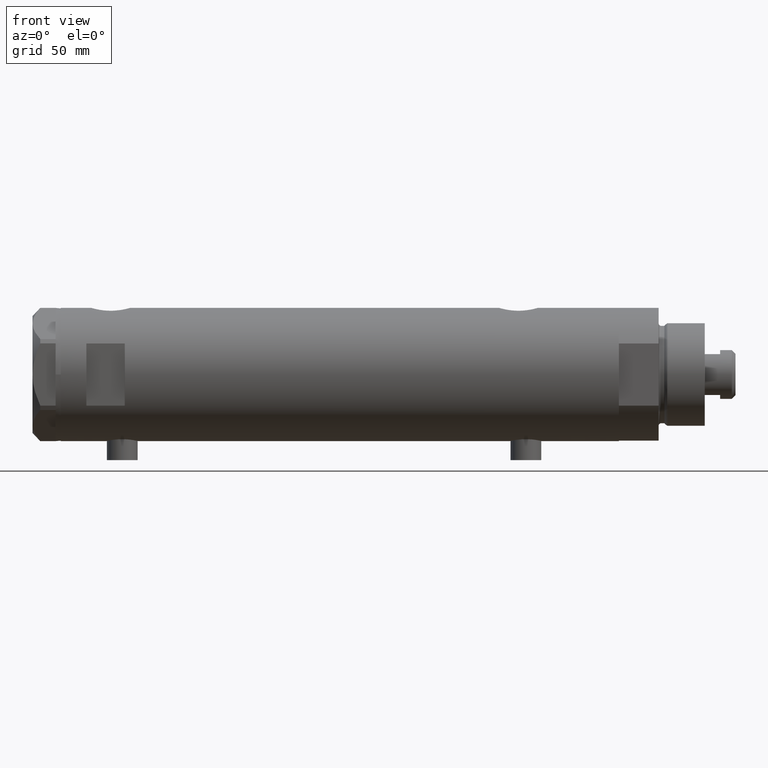
[diagram: clean part render]
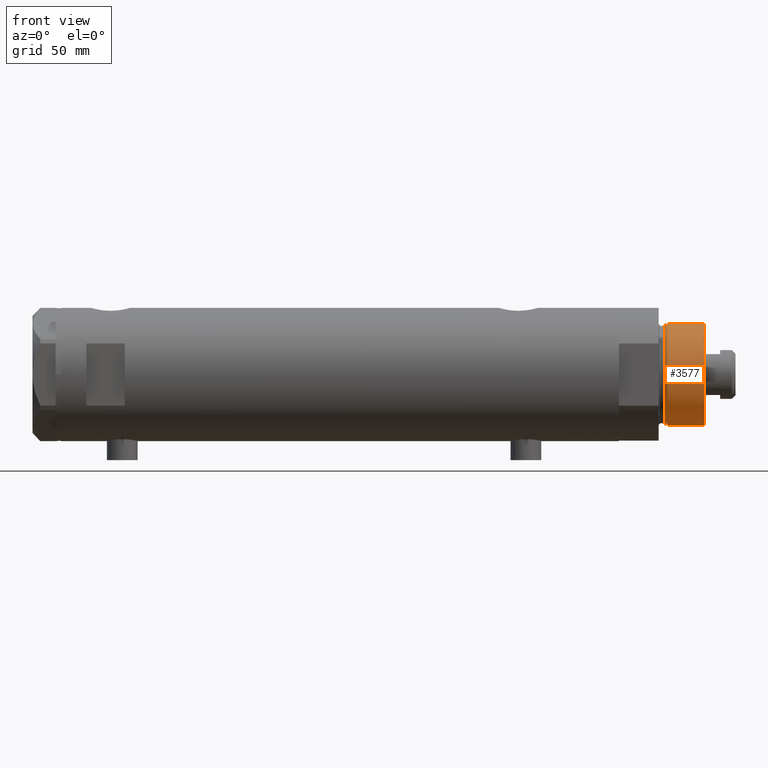
[diagram: same view with one face highlighted and labeled with its STEP entity id]
A machine part, front view. The second image highlights one B-rep face of the part: STEP entity #3577.
In plain terms, the highlighted cylindrical surface (partial cylindrical patch) has radius 20 mm, axis along (-1, -0, 0).
Its self-contained STEP definition (entity closure, byte-faithful):
#231 = CARTESIAN_POINT ( 'NONE',  ( -19.99999999999999645, 0.000000000000000000, 18.87384048104053846 ) ) ;
#772 = CARTESIAN_POINT ( 'NONE',  ( 19.99999999999999645, 2.449293598294706119E-15, 33.50000000000000000 ) ) ;
#864 = DIRECTION ( 'NONE',  ( -1.000000000000000000, 0.000000000000000000, 0.000000000000000000 ) ) ;
#1019 = VERTEX_POINT ( 'NONE', #4766 ) ;
#1091 = VECTOR ( 'NONE', #4449, 1000.000000000000000 ) ;
#1184 = ORIENTED_EDGE ( 'NONE', *, *, #1392, .T. ) ;
#1238 = CARTESIAN_POINT ( 'NONE',  ( 0.000000000000000000, 0.000000000000000000, 33.50000000000000000 ) ) ;
#1295 = CARTESIAN_POINT ( 'NONE',  ( 0.000000000000000000, 0.000000000000000000, 18.87384048104053846 ) ) ;
#1392 = EDGE_CURVE ( 'NONE', #3761, #4704, #1847, .T. ) ;
#1847 = LINE ( 'NONE', #2306, #2491 ) ;
#2106 = DIRECTION ( 'NONE',  ( 0.000000000000000000, 0.000000000000000000, 1.000000000000000000 ) ) ;
#2173 = DIRECTION ( 'NONE',  ( 1.000000000000000000, 0.000000000000000000, 0.000000000000000000 ) ) ;
#2188 = AXIS2_PLACEMENT_3D ( 'NONE', #1238, #2680, #864 ) ;
#2306 = CARTESIAN_POINT ( 'NONE',  ( -19.99999999999999645, 0.000000000000000000, 33.50000000000000000 ) ) ;
#2491 = VECTOR ( 'NONE', #3334, 1000.000000000000000 ) ;
#2680 = DIRECTION ( 'NONE',  ( -0.000000000000000000, -0.000000000000000000, -1.000000000000000000 ) ) ;
#2725 = AXIS2_PLACEMENT_3D ( 'NONE', #4066, #2106, #2173 ) ;
#2820 = LINE ( 'NONE', #2914, #1091 ) ;
#2892 = EDGE_CURVE ( 'NONE', #3852, #1019, #2820, .T. ) ;
#2914 = CARTESIAN_POINT ( 'NONE',  ( 19.99999999999999645, 2.449293598294706119E-15, 33.50000000000000000 ) ) ;
#3021 = ORIENTED_EDGE ( 'NONE', *, *, #4226, .F. ) ;
#3174 = ORIENTED_EDGE ( 'NONE', *, *, #3333, .T. ) ;
#3196 = DIRECTION ( 'NONE',  ( 1.000000000000000000, 0.000000000000000000, 0.000000000000000000 ) ) ;
#3207 = CIRCLE ( 'NONE', #2725, 19.99999999999999645 ) ;
#3236 = EDGE_LOOP ( 'NONE', ( #4082, #3021, #1184, #3174 ) ) ;
#3275 = CIRCLE ( 'NONE', #3356, 19.99999999999999645 ) ;
#3333 = EDGE_CURVE ( 'NONE', #4704, #1019, #3275, .T. ) ;
#3334 = DIRECTION ( 'NONE',  ( -0.000000000000000000, -0.000000000000000000, -1.000000000000000000 ) ) ;
#3356 = AXIS2_PLACEMENT_3D ( 'NONE', #1295, #4378, #3196 ) ;
#3539 = CYLINDRICAL_SURFACE ( 'NONE', #2188, 19.99999999999999645 ) ;
#3577 = ADVANCED_FACE ( 'NONE', ( #3845 ), #3539, .T. ) ;
#3761 = VERTEX_POINT ( 'NONE', #4060 ) ;
#3845 = FACE_OUTER_BOUND ( 'NONE', #3236, .T. ) ;
#3852 = VERTEX_POINT ( 'NONE', #772 ) ;
#4060 = CARTESIAN_POINT ( 'NONE',  ( -19.99999999999999645, 0.000000000000000000, 33.50000000000000000 ) ) ;
#4066 = CARTESIAN_POINT ( 'NONE',  ( 0.000000000000000000, 0.000000000000000000, 33.50000000000000000 ) ) ;
#4082 = ORIENTED_EDGE ( 'NONE', *, *, #2892, .F. ) ;
#4226 = EDGE_CURVE ( 'NONE', #3761, #3852, #3207, .T. ) ;
#4378 = DIRECTION ( 'NONE',  ( -0.000000000000000000, -0.000000000000000000, 1.000000000000000000 ) ) ;
#4449 = DIRECTION ( 'NONE',  ( -0.000000000000000000, -0.000000000000000000, -1.000000000000000000 ) ) ;
#4704 = VERTEX_POINT ( 'NONE', #231 ) ;
#4766 = CARTESIAN_POINT ( 'NONE',  ( 19.99999999999999645, 2.449293598294706119E-15, 18.87384048104053846 ) ) ;